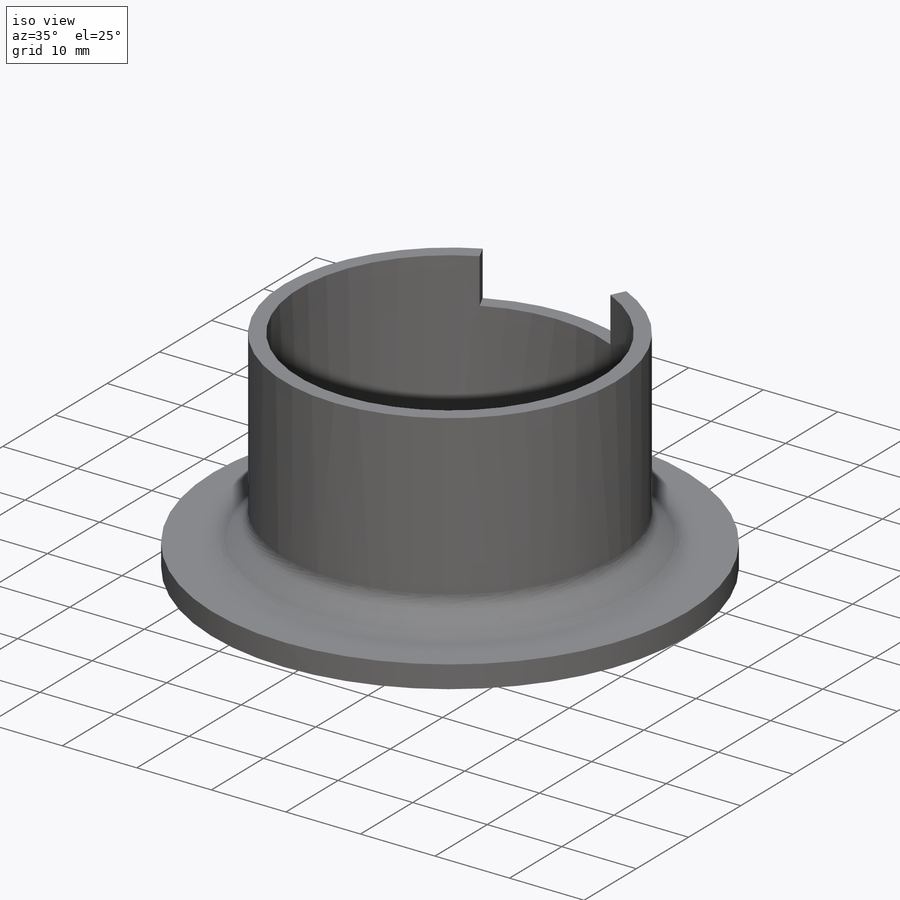
[diagram: iso view]
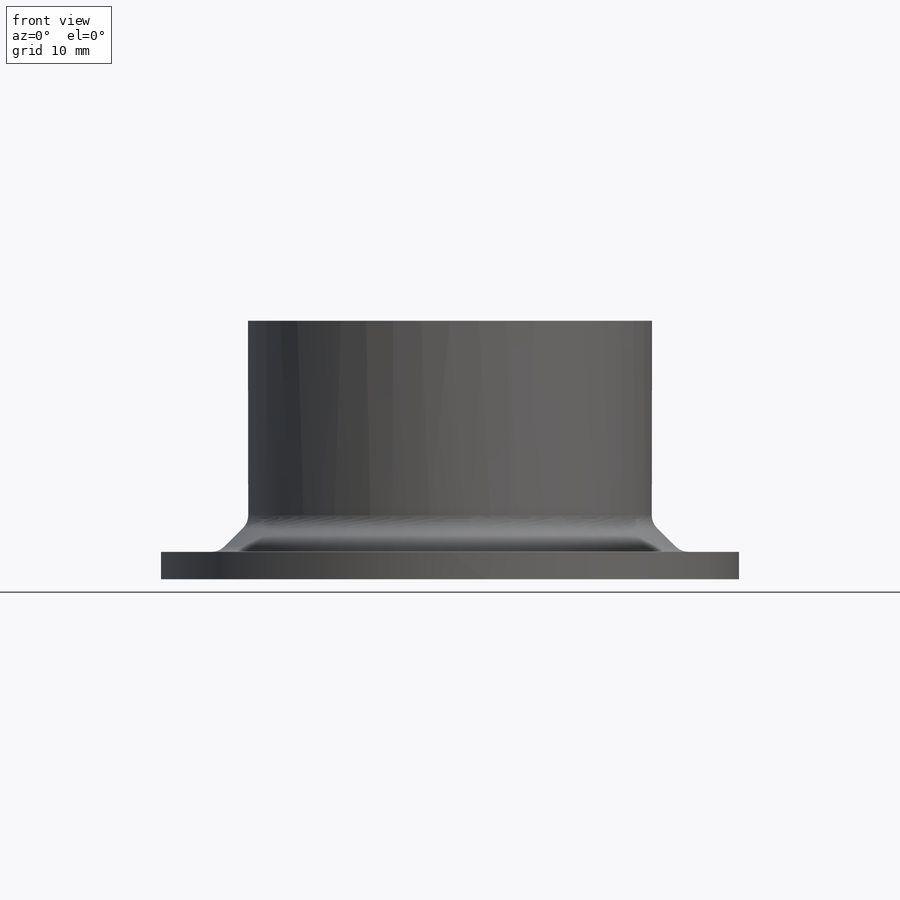
[diagram: front view]
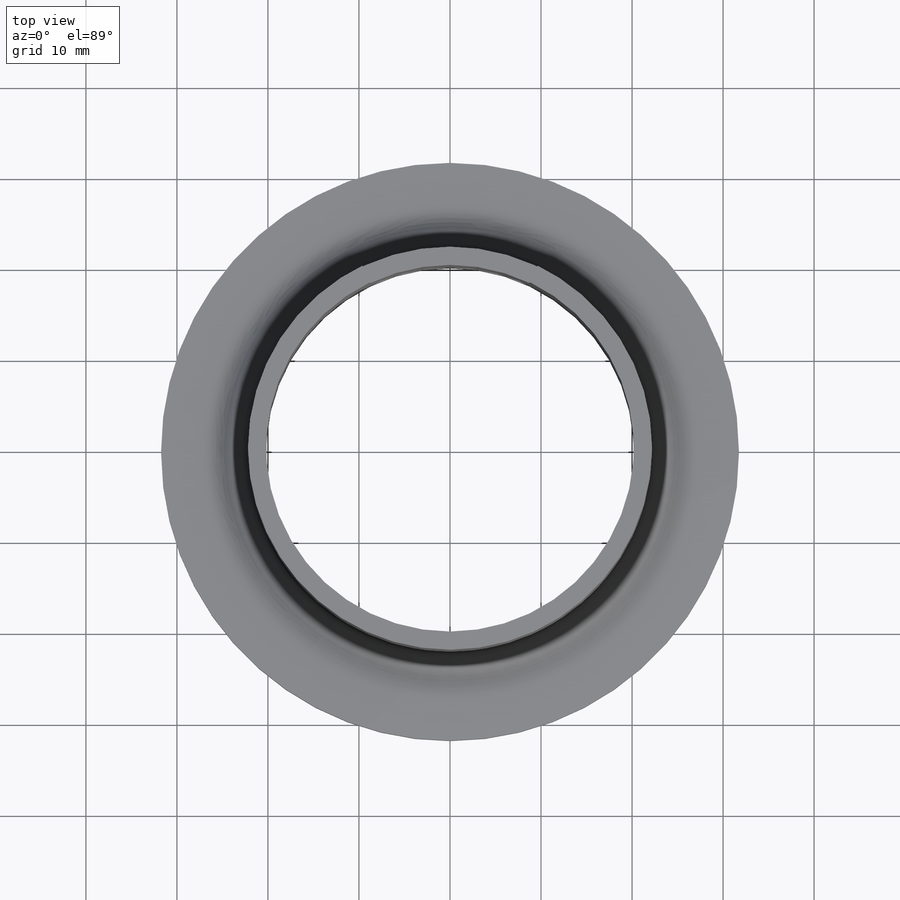
[diagram: top view]
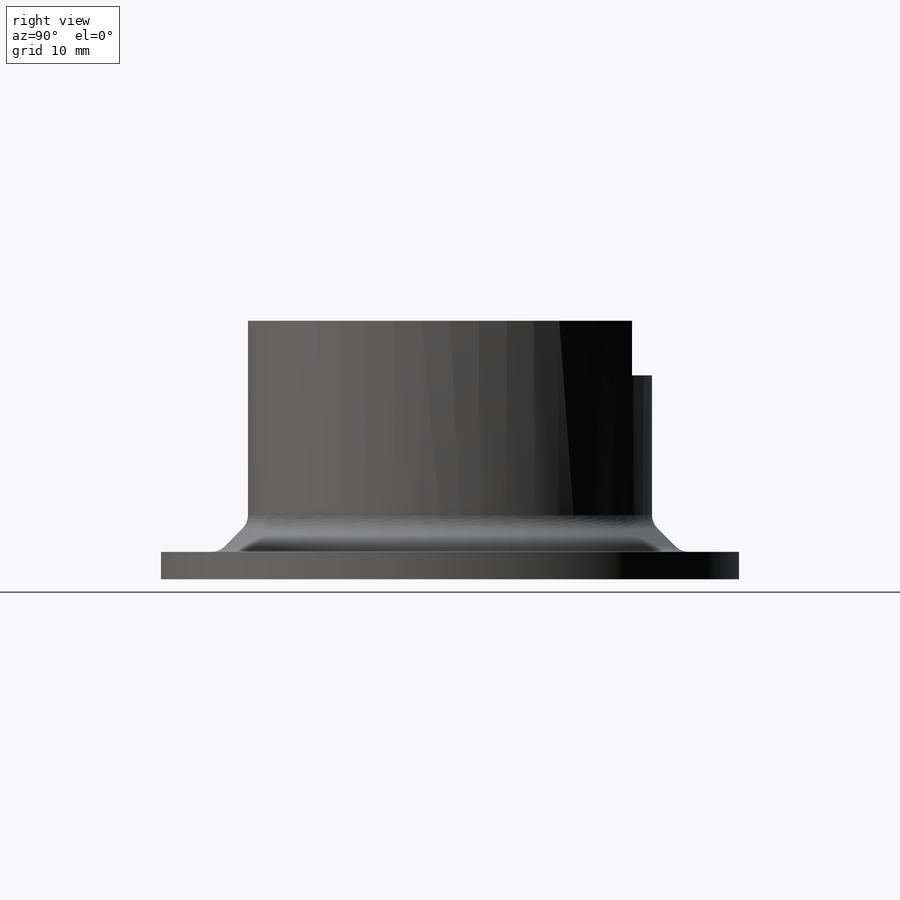
[diagram: right view]
SOLIDWORKS PART (.sldprt)
format: sldprt  version: not decoded by parser v0  size: 269,824 bytes
history: native  units: mm
features: sketch x6, extrude x2, fillet x2, cut_extrude x2, material x1, revolve x1, pattern_circular x1 (+11 scaffold rows collapsed)
feature tree (26):
  scaffold x11  (default folders/planes/origin — collapsed)
  material  "Material <not specified>"
  sketch  "3DSketch1"  dims[c1.D1=~40.334523mm c2.D1=~27.182154mm c3.D1=~8.678412mm c4.D1=~47.774791deg c4.D2=45.0deg]
  sketch  "Sketch3"  dims[D1=2.0mm]
  revolve  "Revolve1"  Angle=360deg
  sketch  "Sketch4"  dims[D1=~32.322224mm]
  extrude  "Boss-Extrude1"  Depth=3mm
  fillet  "Fillet1"  Radius=2mm
  fillet  "Fillet2"  Radius=2mm
  sketch  "Sketch5"
  extrude  "Boss-Extrude2"  Depth=1mm
  pattern_circular  "CirPattern1"  Count=4 Angle=360deg
  sketch  "Sketch6"  dims[D1=20.0mm]
  cut_extrude  "Cut-Extrude1"  Depth=6mm
  sketch  "Sketch7"  dims[D1=2.0mm]
  cut_extrude  "Cut-Extrude2"  Depth=6mm
decode coverage: 13 of 14 modeling features carry decoded parameters
note: ~ marks probable driven/reference dimensions
note: suppression state not decoded; provenance and decode notes live in map.json
